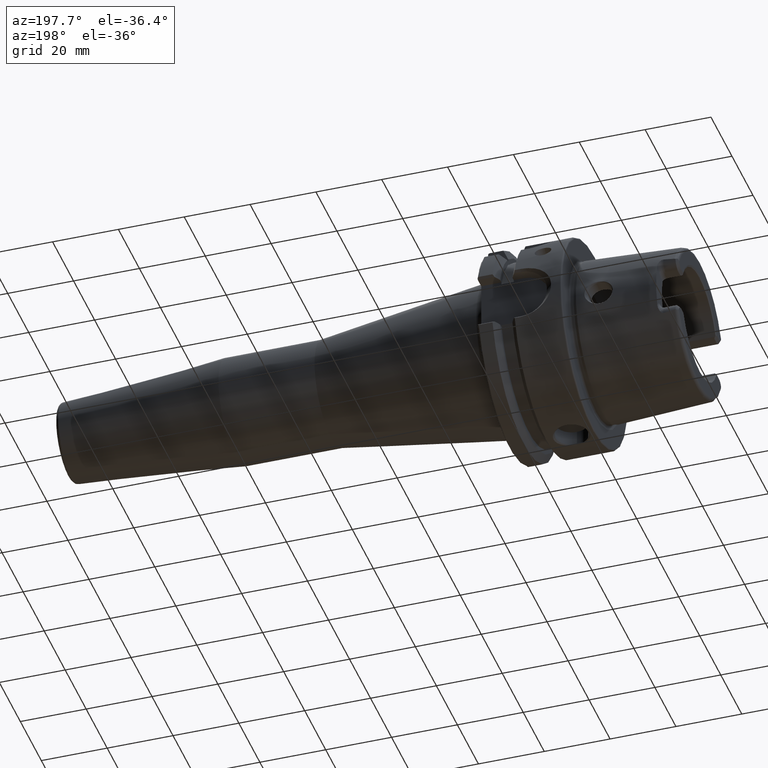
[diagram: clean part render]
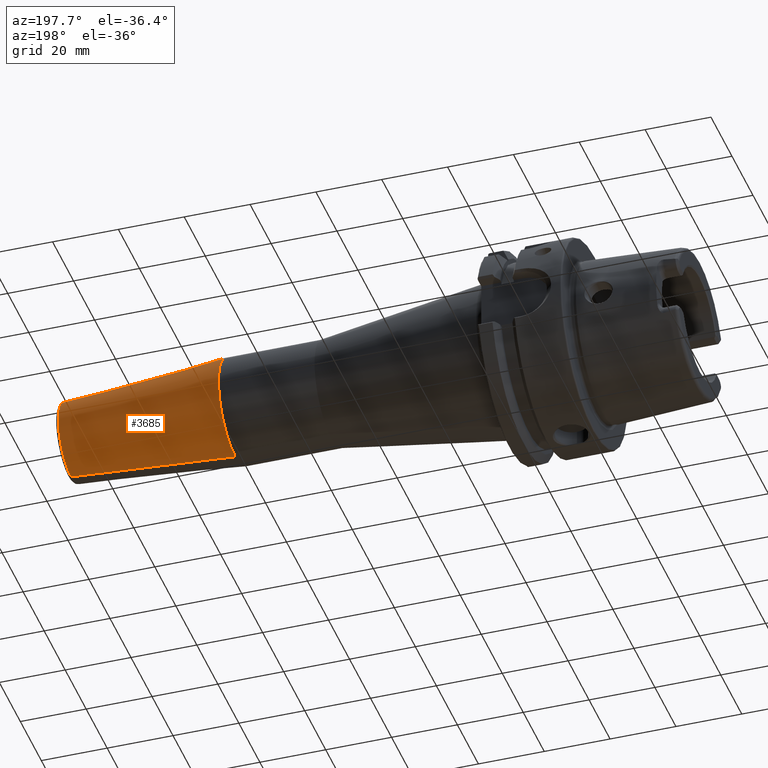
[diagram: same view with one face highlighted and labeled with its STEP entity id]
A machine part, auxiliary view. The second image highlights one B-rep face of the part: STEP entity #3685.
In plain terms, the highlighted conical surface has half-angle 4.5 deg.
Its self-contained STEP definition (entity closure, byte-faithful):
#589=CARTESIAN_POINT('',(1.590784590957E2,0.E0,0.E0));
#590=DIRECTION('',(1.E0,0.E0,0.E0));
#591=DIRECTION('',(0.E0,0.E0,-1.E0));
#592=AXIS2_PLACEMENT_3D('',#589,#590,#591);
#594=DIRECTION('',(-9.969173337331E-1,0.E0,-7.845909572785E-2));
#595=VECTOR('',#594,5.005758888107E1);
#596=CARTESIAN_POINT('',(1.590784590957E2,0.E0,-1.207252684208E1));
#597=LINE('',#596,#595);
#598=DIRECTION('',(-9.969173337331E-1,0.E0,7.845909572785E-2));
#599=VECTOR('',#598,5.005758888107E1);
#600=CARTESIAN_POINT('',(1.590784590957E2,0.E0,1.207252684208E1));
#601=LINE('',#600,#599);
#620=CARTESIAN_POINT('',(1.091751810553E2,0.E0,0.E0));
#621=DIRECTION('',(1.E0,0.E0,0.E0));
#622=DIRECTION('',(0.E0,0.E0,-1.E0));
#623=AXIS2_PLACEMENT_3D('',#620,#621,#622);
#2973=CARTESIAN_POINT('',(1.590784590957E2,0.E0,-1.207252684208E1));
#2975=VERTEX_POINT('',#2973);
#2976=CARTESIAN_POINT('',(1.091751810553E2,0.E0,-1.6E1));
#2977=VERTEX_POINT('',#2976);
#2997=CARTESIAN_POINT('',(1.590784590957E2,0.E0,1.207252684208E1));
#2999=VERTEX_POINT('',#2997);
#3000=CARTESIAN_POINT('',(1.091751810553E2,0.E0,1.6E1));
#3001=VERTEX_POINT('',#3000);
#3671=CARTESIAN_POINT('',(1.341268200755E2,0.E0,0.E0));
#3672=DIRECTION('',(-1.E0,0.E0,0.E0));
#3673=DIRECTION('',(0.E0,0.E0,-1.E0));
#3674=AXIS2_PLACEMENT_3D('',#3671,#3672,#3673);
#3675=CONICAL_SURFACE('',#3674,1.403626342104E1,4.5E0);
#3677=ORIENTED_EDGE('',*,*,#3676,.F.);
#3678=ORIENTED_EDGE('',*,*,#3666,.T.);
#3680=ORIENTED_EDGE('',*,*,#3679,.T.);
#3682=ORIENTED_EDGE('',*,*,#3681,.F.);
#3683=EDGE_LOOP('',(#3677,#3678,#3680,#3682));
#3684=FACE_OUTER_BOUND('',#3683,.F.);
#3685=ADVANCED_FACE('',(#3684),#3675,.T.);
#593=CIRCLE('',#592,1.207252684208E1);
#624=CIRCLE('',#623,1.6E1);
#3666=EDGE_CURVE('',#2975,#2999,#593,.T.);
#3676=EDGE_CURVE('',#2975,#2977,#597,.T.);
#3679=EDGE_CURVE('',#2999,#3001,#601,.T.);
#3681=EDGE_CURVE('',#2977,#3001,#624,.T.);